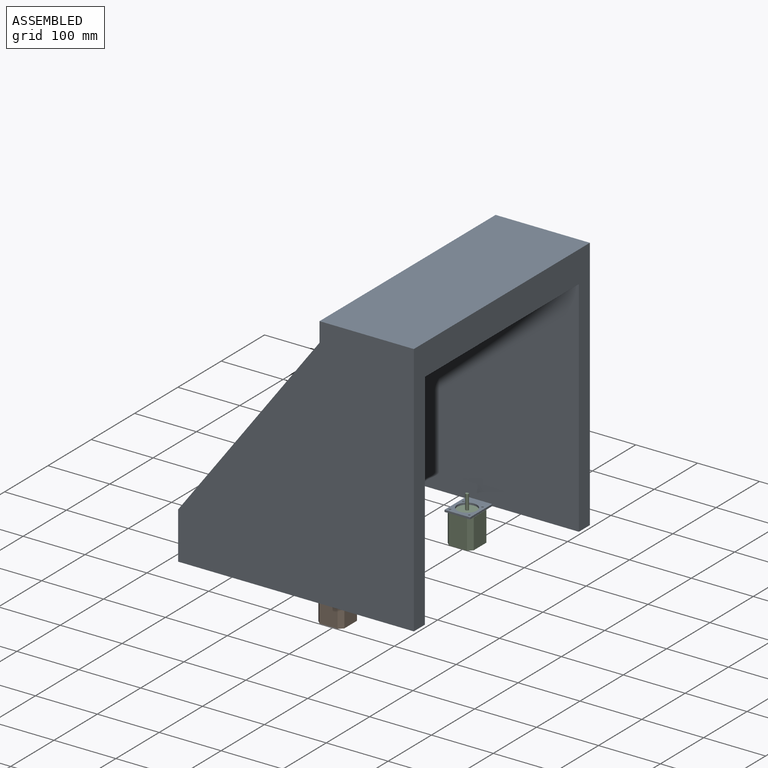
[diagram: assembled view]
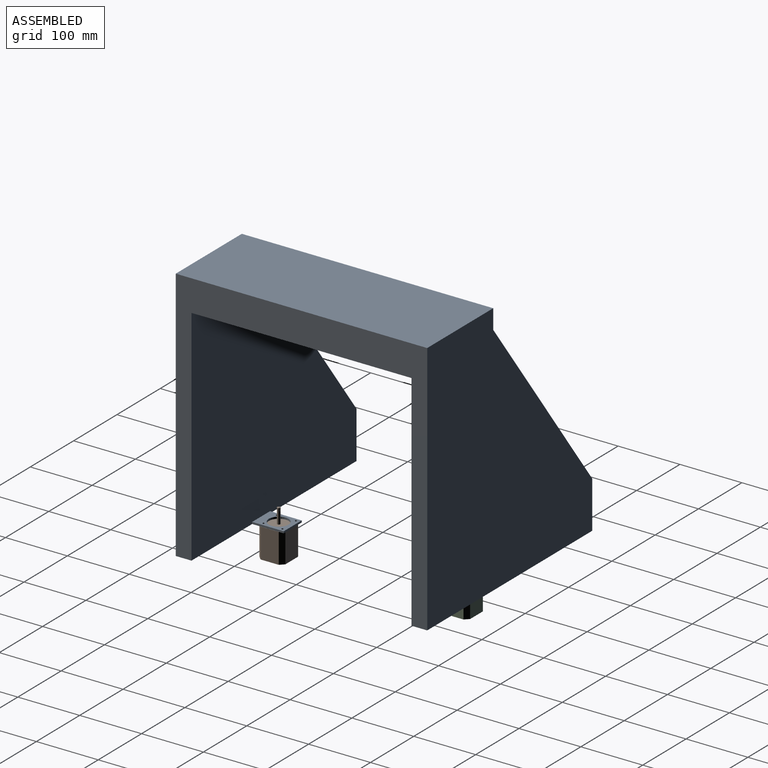
[diagram: assembled view, second angle]
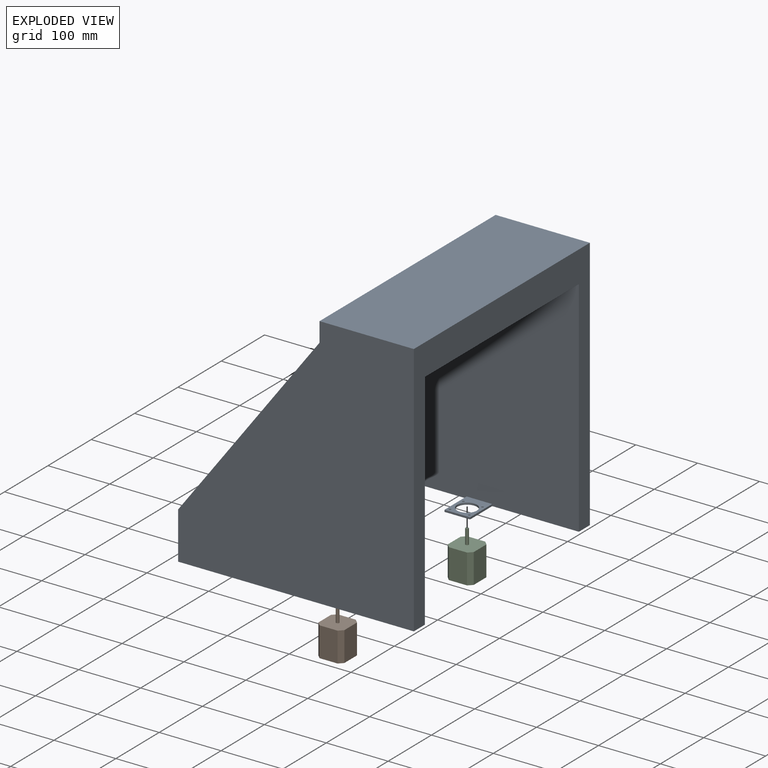
[diagram: exploded view]
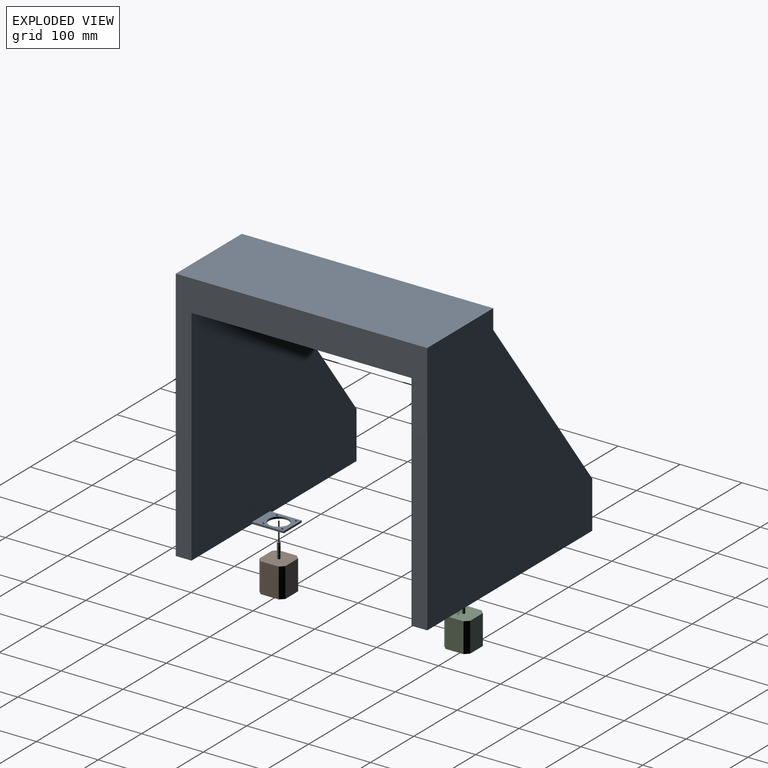
[diagram: exploded view, second angle]
ASSEMBLY  parts=3 mates=3
PART A: 32 faces, bbox 381x412.5x406.4 mm
  f0: plane 76.2x25.4mm, normal (-1,0,0), area 1935.5mm2, adj f1,f3,f4,f5
  f1: plane 381x76.45mm, normal (0,-1,0), area 10952.4mm2, adj f0,f2,f4,f5,f6,f7,f8,f9
  f2: plane 412.46x406.4mm, normal (1,0,0), area 38943.6mm2, adj f1,f4,f5,f16,f17,f19,f21,f22
  f3: plane 304.8x228.6mm, normal (-0.8,0.6,0), area 9677.4mm2, adj f0,f4,f5,f15
  f4: plane 381x381mm, normal (0,0,1), area 107280.7mm2, adj f0,f1,f2,f3,f6,f7,f14,f15
  f5: plane 412.46x381mm, normal (0,0,-1), area 115117.1mm2, adj f0,f1,f2,f3,f15,f17
  f6: plane 51.05x3.05mm, normal (-1,0,0), area 155.6mm2, adj f1,f4,f12,f14
  f7: plane 51.05x3.05mm, normal (1,0,0), area 155.6mm2, adj f1,f4,f12,f14
  f8: cylinder r=1.65mm len=3.3mm, axis (0,-1,0), area 31.6mm2, adj f1,f14
  f9: cylinder r=1.65mm len=3.3mm, axis (0,-1,0), area 31.6mm2, adj f1,f14
  f10: cylinder r=1.65mm len=3.3mm, axis (0,-1,0), area 31.6mm2, adj f1,f14
  f11: cylinder r=16mm len=32mm, axis (0,-1,0), area 306.5mm2, adj f1,f14
  f12: plane 41.4x3.05mm, normal (0,0,1), area 126.2mm2, adj f1,f6,f7,f14
  f13: cylinder r=1.65mm len=3.3mm, axis (0,-1,0), area 31.6mm2, adj f1,f14
  f14: plane 51.05x41.4mm, normal (0,1,0), area 1275mm2, adj f4,f6,f7,f8,f9,f10,f11,f12
  f15: plane 406.4x50.59mm, normal (-1,0,0), area 19588.8mm2, adj f3,f4,f5,f16,f17,f20,f21,f22
  f16: plane 355.6x152.4mm, normal (0,-1,0), area 54193.4mm2, adj f2,f4,f15,f21
  f17: plane 406.4x152.4mm, normal (0,1,0), area 61935.4mm2, adj f2,f5,f15,f22
  f18: plane 76.2x25.4mm, normal (-1,0,0), area 1935.5mm2, adj f19,f20,f21,f22
  f19: plane 381x76.45mm, normal (0,-1,0), area 10952.4mm2, adj f2,f18,f21,f22,f23,f24,f25,f26
  f20: plane 304.8x228.6mm, normal (-0.8,0.6,0), area 9677.4mm2, adj f15,f18,f21,f22
  f21: plane 381x381mm, normal (0,0,-1), area 107280.7mm2, adj f2,f15,f16,f18,f19,f20,f23,f24
  f22: plane 412.46x381mm, normal (0,0,1), area 115117.1mm2, adj f2,f15,f17,f18,f19,f20
  f23: plane 51.05x3.05mm, normal (-1,0,0), area 155.6mm2, adj f19,f21,f29,f31
  f24: plane 51.05x3.05mm, normal (1,0,0), area 155.6mm2, adj f19,f21,f29,f31
  f25: cylinder r=1.65mm len=3.3mm, axis (0,-1,0), area 31.6mm2, adj f19,f31
  f26: cylinder r=1.65mm len=3.3mm, axis (0,-1,0), area 31.6mm2, adj f19,f31
  f27: cylinder r=1.65mm len=3.3mm, axis (0,-1,0), area 31.6mm2, adj f19,f31
  f28: cylinder r=16mm len=32mm, axis (0,-1,0), area 306.5mm2, adj f19,f31
  f29: plane 41.4x3.05mm, normal (0,0,-1), area 126.2mm2, adj f19,f23,f24,f31
  f30: cylinder r=1.65mm len=3.3mm, axis (0,-1,0), area 31.6mm2, adj f19,f31
  f31: plane 51.05x41.4mm, normal (0,1,0), area 1275mm2, adj f21,f23,f24,f25,f26,f27,f28,f29
PART B: 14 faces, bbox 42x42x72 mm
  f0: plane 5x4.5mm, normal (0,0,1), area 18.6mm2, adj f11,f12
  f1: plane 48x29.3mm, normal (0,-1,0), area 1406.4mm2, adj f5,f6,f8,f10
  f2: plane 48x29.3mm, normal (1,0,0), area 1406.4mm2, adj f5,f6,f7,f8
  f3: plane 48x29.3mm, normal (0,1,0), area 1406.4mm2, adj f5,f6,f7,f9
  f4: plane 48x29.3mm, normal (-1,0,0), area 1406.4mm2, adj f5,f6,f9,f10
  f5: plane 42x42mm, normal (0,0,1), area 1663.7mm2, adj f1,f2,f3,f4,f7,f8,f9,f10
  f6: plane 42x42mm, normal (0,0,-1), area 1683.4mm2, adj f1,f2,f3,f4,f7,f8,f9,f10
  f7: plane 48x6.35mm, normal (0.71,0.71,0), area 431.1mm2, adj f2,f3,f5,f6
  f8: plane 48x6.35mm, normal (0.71,-0.71,0), area 431.1mm2, adj f1,f2,f5,f6
  f9: plane 48x6.35mm, normal (-0.71,0.71,0), area 431.1mm2, adj f3,f4,f5,f6
  f10: plane 48x6.35mm, normal (-0.71,-0.71,0), area 431.1mm2, adj f1,f4,f5,f6
  f11: cylinder r=2.5mm len=24mm, axis (0,0,-1), area 362.5mm2, adj f0,f5,f12,f13
  f12: plane 4.5x3mm, normal (0,1,0), area 13.5mm2, adj f0,f11,f13
  f13: plane 3x0.5mm, normal (0,0,1), area 1mm2, adj f11,f12
PART C: same geometry as B
PLACE A rot(axis=(1,0,0),90deg) t=(-107.78,203.33,105.9)mm
PLACE B t=(-98.38,-133.96,-15.47)mm
PLACE C t=(-98.38,164.74,-15.47)mm
MATE fastened B.f11 <-> A.f28  axis (0,0,1) through (-87.08,-149.22,32.53)mm
MATE planar A.f28 <-> B.f11  axis (0,0,-1) through (-87.08,-149.22,32.53)mm
MATE planar A.f11 <-> C.f11  axis (0,0,-1) through (-87.08,149.48,32.53)mm
